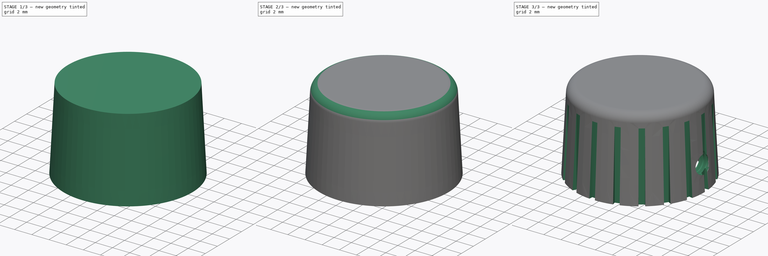
[diagram: build sequence overview — one tinted view per stage of 3, left to right]
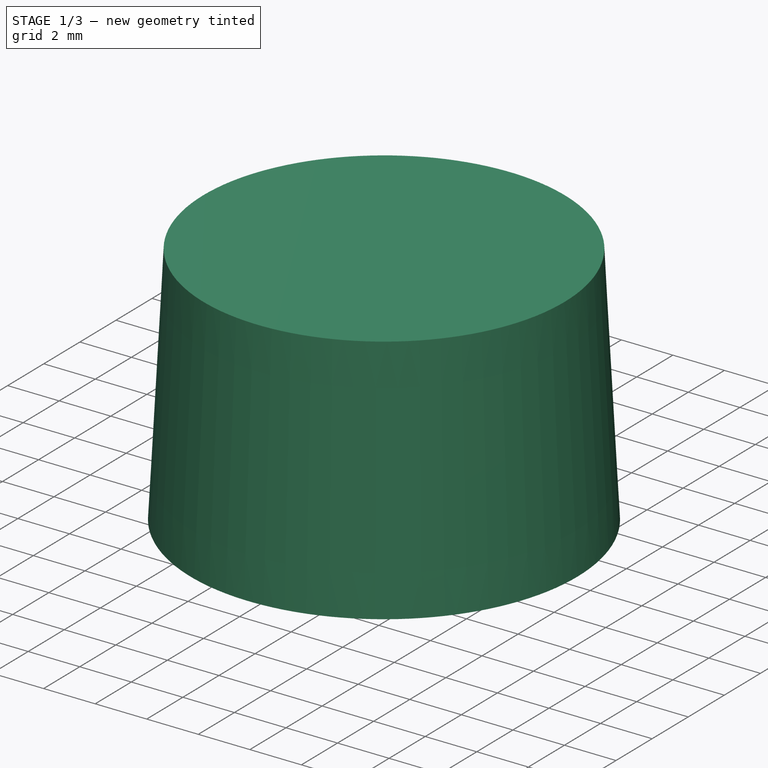
[diagram: stage 1 of 3 — iso view after this stage's code; geometry added in this stage tinted green]
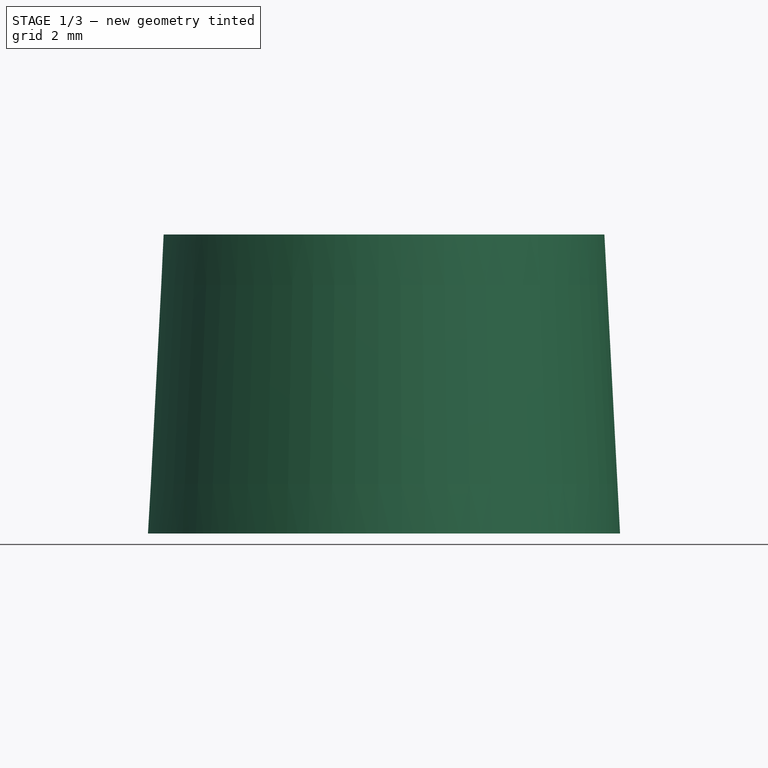
[diagram: stage 1 of 3 — front view after this stage's code; geometry added in this stage tinted green]
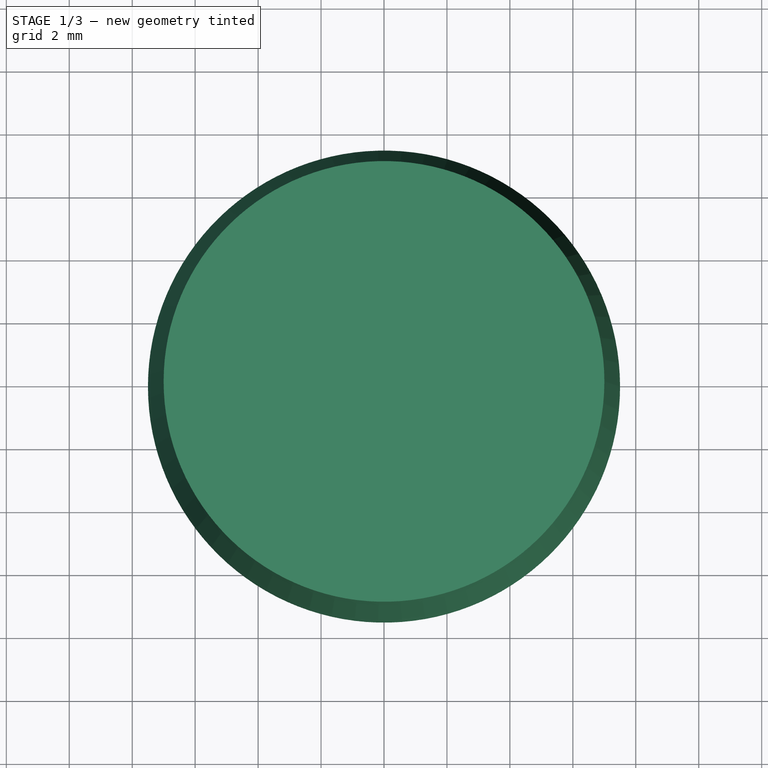
[diagram: stage 1 of 3 — top view after this stage's code; geometry added in this stage tinted green]
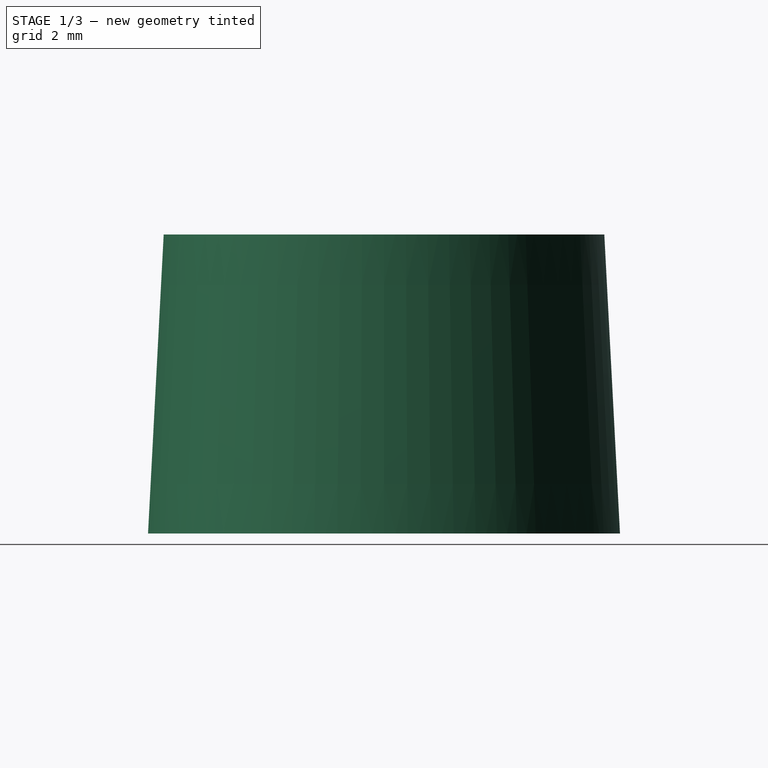
[diagram: stage 1 of 3 — right view after this stage's code; geometry added in this stage tinted green]
FCSTD DOCUMENT  (FreeCAD 1.0R39109 (Git))
Label: dial
License: All rights reserved
LicenseURL: https://en.wikipedia.org/wiki/All_rights_reserved
objects: Sketcher::SketchObject×3, PartDesign::Pocket×2, PartDesign::Pad×1, PartDesign::Fillet×1, PartDesign::Body×1, Part::Feature×1, Part::Cut×1, App::Part×1
note: 21 computed .brp shape members not serialized (recipe doc carries the construction recipe); baked Part::Feature solids carry a one-line shape summary decoded from their .brp

FEATURE [Sketcher::SketchObject] Sketch012
  ArcFitTolerance = 1e-06
  AttachmentSupport = -> [XY_Plane443]
  FullyConstrained = true
  MakeInternals = false
  MapMode = 5
  sketch-geometry (1):
    g0: Circle CenterX=0 CenterY=0 CenterZ=0 NormalX=0 NormalY=0 NormalZ=1 AngleXU=0 Radius=7.5
  constraints (2):
    c: Coincident(g0,g-1)
    c: Diameter(g0) = 15
FEATURE [PartDesign::Pad] Pad004
  Direction = (0,0,1)
  Length = 9.5
  Length2 = 10
  Profile = -> Sketch012
  ReferenceAxis = -> Sketch012 [N_Axis]
  Refine = true
  Suppressed = false
  TaperAngle = -3
  Type = 0
FEATURE [Sketcher::SketchObject] Sketch013
  ArcFitTolerance = 1e-06
  AttachmentSupport = -> [Pad004]
  FullyConstrained = false
  MakeInternals = false
  MapMode = 5
  Placement = pos=(0,0,0) rot=(1,0,0;3.14159rad)
  sketch-geometry (27):
    g0: ArcOfCircle CenterX=0 CenterY=0 CenterZ=0 NormalX=0 NormalY=0 NormalZ=1 AngleXU=0 Radius=6.2 StartAngle=1.66772 EndAngle=3.04467
    g1: ArcOfCircle CenterX=0 CenterY=0 CenterZ=0 NormalX=0 NormalY=0 NormalZ=1 AngleXU=0 Radius=4.475 StartAngle=1.70528 EndAngle=3.00711
    g2: LineSegment [constr] StartX=-9.21851 StartY=0.6 StartZ=0 EndX=-9.21851 EndY=-0.6 EndZ=0
    g3: LineSegment [constr] StartX=-9.21851 StartY=-0.6 StartZ=0 EndX=9.21851 EndY=-0.6 EndZ=0
    g4: LineSegment [constr] StartX=9.21851 StartY=-0.6 StartZ=0 EndX=9.21851 EndY=0.6 EndZ=0
    g5: LineSegment [constr] StartX=9.21851 StartY=0.6 StartZ=0 EndX=-9.21851 EndY=0.6 EndZ=0
    g6: LineSegment [constr] StartX=-0.6 StartY=9.73642 StartZ=0 EndX=-0.6 EndY=-9.73642 EndZ=0
    g7: LineSegment [constr] StartX=-0.6 StartY=-9.73642 StartZ=0 EndX=0.6 EndY=-9.73642 EndZ=0
    g8: LineSegment [constr] StartX=0.6 StartY=-9.73642 StartZ=0 EndX=0.6 EndY=9.73642 EndZ=0
    g9: LineSegment [constr] StartX=0.6 StartY=9.73642 StartZ=0 EndX=-0.6 EndY=9.73642 EndZ=0
    g10: LineSegment StartX=-0.6 StartY=6.1709 StartZ=0 EndX=-0.6 EndY=4.43459 EndZ=0
    g11: LineSegment StartX=0.6 StartY=6.1709 StartZ=0 EndX=0.6 EndY=4.43459 EndZ=0
    g12: LineSegment StartX=-0.6 StartY=-4.43459 StartZ=0 EndX=-0.6 EndY=-6.1709 EndZ=0
    g13: LineSegment StartX=0.6 StartY=-4.43459 StartZ=0 EndX=0.6 EndY=-6.1709 EndZ=0
    g14: LineSegment StartX=-4.43459 StartY=0.6 StartZ=0 EndX=-6.1709 EndY=0.6 EndZ=0
    g15: LineSegment StartX=-6.1709 StartY=-0.6 StartZ=0 EndX=-4.43459 EndY=-0.6 EndZ=0
    g16: LineSegment StartX=4.43459 StartY=0.6 StartZ=0 EndX=6.1709 EndY=0.6 EndZ=0
    g17: LineSegment StartX=6.1709 StartY=-0.6 StartZ=0 EndX=4.43459 EndY=-0.6 EndZ=0
    g18: ArcOfCircle CenterX=0 CenterY=0 CenterZ=0 NormalX=0 NormalY=0 NormalZ=1 AngleXU=0 Radius=4.475 StartAngle=3.27608 EndAngle=4.57791
    g19: ArcOfCircle CenterX=0 CenterY=0 CenterZ=0 NormalX=0 NormalY=0 NormalZ=1 AngleXU=0 Radius=4.475 StartAngle=0.134483 EndAngle=1.43631
    g20: ArcOfCircle CenterX=0 CenterY=0 CenterZ=0 NormalX=0 NormalY=0 NormalZ=1 AngleXU=0 Radius=6.2 StartAngle=0.0969259 EndAngle=1.47387
    g21: ArcOfCircle CenterX=0 CenterY=0 CenterZ=0 NormalX=0 NormalY=0 NormalZ=1 AngleXU=0 Radius=6.2 StartAngle=3.23852 EndAngle=4.61546
    g22: ArcOfCircle CenterX=0 CenterY=0 CenterZ=0 NormalX=0 NormalY=0 NormalZ=1 AngleXU=0 Radius=6.2 StartAngle=4.80931 EndAngle=6.18626
    g23: Circle [constr] CenterX=0 CenterY=0 CenterZ=0 NormalX=0 NormalY=0 NormalZ=1 AngleXU=0 Radius=6.2
    g24: ArcOfCircle CenterX=0 CenterY=0 CenterZ=0 NormalX=0 NormalY=0 NormalZ=1 AngleXU=0 Radius=4.475 StartAngle=4.84687 EndAngle=6.1487
    g25: Circle [constr] CenterX=0 CenterY=0 CenterZ=0 NormalX=0 NormalY=0 NormalZ=1 AngleXU=0 Radius=4.475
    g26: Circle CenterX=0 CenterY=0 CenterZ=0 NormalX=0 NormalY=0 NormalZ=1 AngleXU=0 Radius=3.05
  constraints (74):
    c: Coincident(g17,g22)
    c: Coincident(g16,g20)
    c: Coincident(g16,g19)
    c: Coincident(g17,g24)
    c: Coincident(g18,g24)
    c: Coincident(g13,g24)
    c: Coincident(g13,g22)
    c: Coincident(g12,g21)
    c: Coincident(g12,g18)
    c: Coincident(g15,g18)
    c: Coincident(g15,g21)
    c: Coincident(g0,g14)
    c: Coincident(g1,g14)
    c: Coincident(g1,g10)
    c: Coincident(g0,g10)
    c: Coincident(g11,g20)
    c: Coincident(g11,g19)
    c: Coincident(g25,g0)
    c: Diameter(g25) = 8.95
    c: Coincident(g0,g1)
    c: Coincident(g19,g20)
    c: Coincident(g0,g21)
    c: Coincident(g0,g23)
    c: Coincident(g0,g22)
    c: Coincident(g19,g18)
    c: Coincident(g0,g-1)
    c: Coincident(g18,g0)
    c: PointOnObject(g1,g25)
    c: PointOnObject(g1,g6)
    c: PointOnObject(g11,g25)
    c: PointOnObject(g11,g8)
    c: PointOnObject(g17,g25)
    c: PointOnObject(g17,g3)
    c: PointOnObject(g16,g5)
    c: PointOnObject(g16,g23)
    c: PointOnObject(g16,g5)
    c: PointOnObject(g17,g3)
    c: PointOnObject(g17,g23)
    c: PointOnObject(g13,g8)
    c: PointOnObject(g12,g23)
    c: PointOnObject(g12,g25)
    c: PointOnObject(g12,g6)
    c: PointOnObject(g15,g3)
    c: PointOnObject(g15,g3)
    c: PointOnObject(g0,g23)
    c: PointOnObject(g0,g5)
    c: PointOnObject(g1,g5)
    c: PointOnObject(g0,g6)
    c: PointOnObject(g11,g8)
    c: Vertical(g6)
    c: Vertical(g8)
    c: Horizontal(g5)
    c: Horizontal(g3)
    c: Coincident(g2,g5)
    c: Coincident(g2,g3)
    c: Coincident(g4,g5)
    c: Coincident(g3,g4)
    c: Coincident(g6,g9)
    c: Coincident(g8,g9)
    c: Coincident(g6,g7)
    c: Coincident(g7,g8)
    c: PointOnObject(g12,g6)
    c: PointOnObject(g13,g8)
    c: Equal(g9,g4)
    c: Symmetric(g2,g3,g0)
    c: Symmetric(g6,g7,g0)
    c: Distance(g4,g4) = 1.2
    c: Radius(g0) = 6.2
    c: Coincident(g26,g0)
    c: Diameter(g26) = 6.1
    c: Vertical(g2)
    c: Vertical(g4)
    c: Horizontal(g9)
    c: Horizontal(g7)
FEATURE [PartDesign::Pocket] Pocket002
  BaseFeature = -> Pad004
  Direction = (0,0,1)
  Length = 8.8
  Length2 = 5
  Profile = -> Sketch013
  ReferenceAxis = -> Sketch013 [N_Axis]
  Refine = true
  Suppressed = false
  TaperAngle = -0.7
  Type = 0
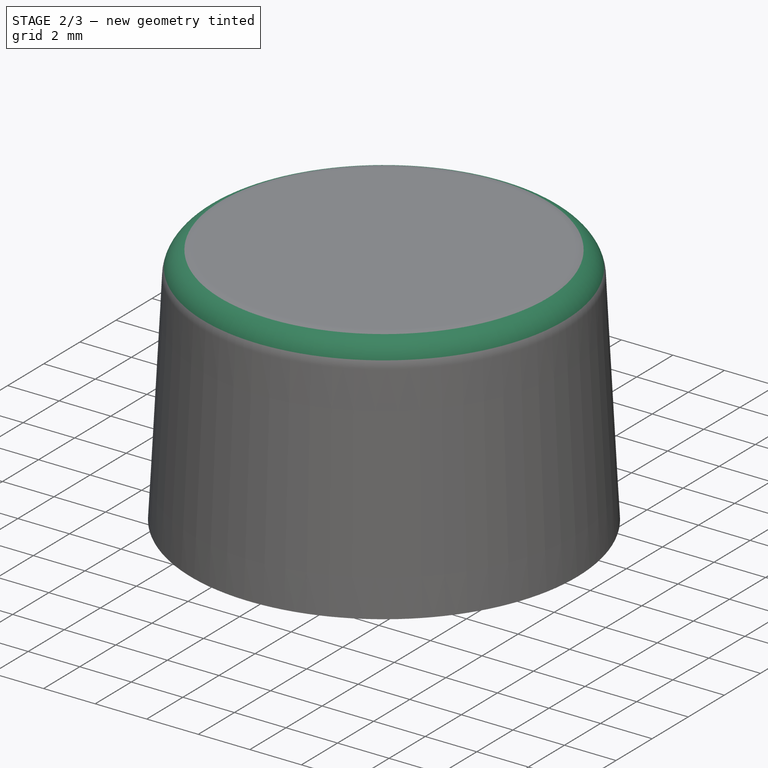
[diagram: stage 2 of 3 — iso view after this stage's code; geometry added in this stage tinted green]
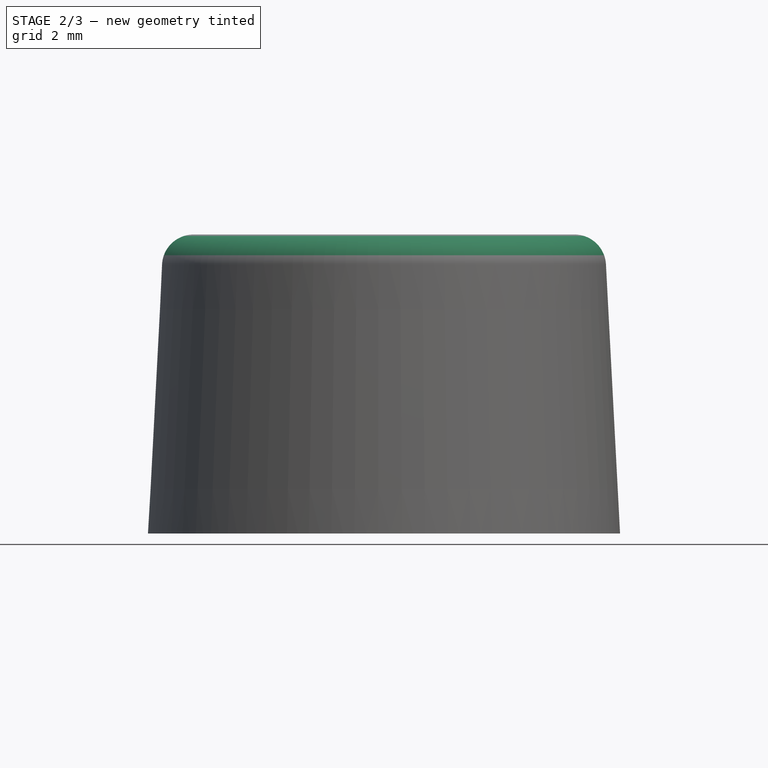
[diagram: stage 2 of 3 — front view after this stage's code; geometry added in this stage tinted green]
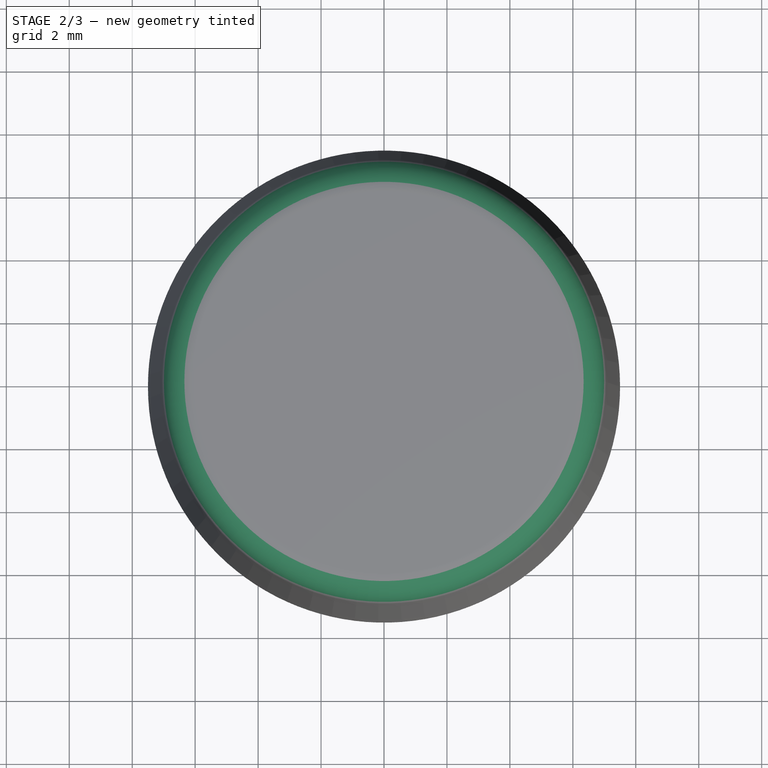
[diagram: stage 2 of 3 — top view after this stage's code; geometry added in this stage tinted green]
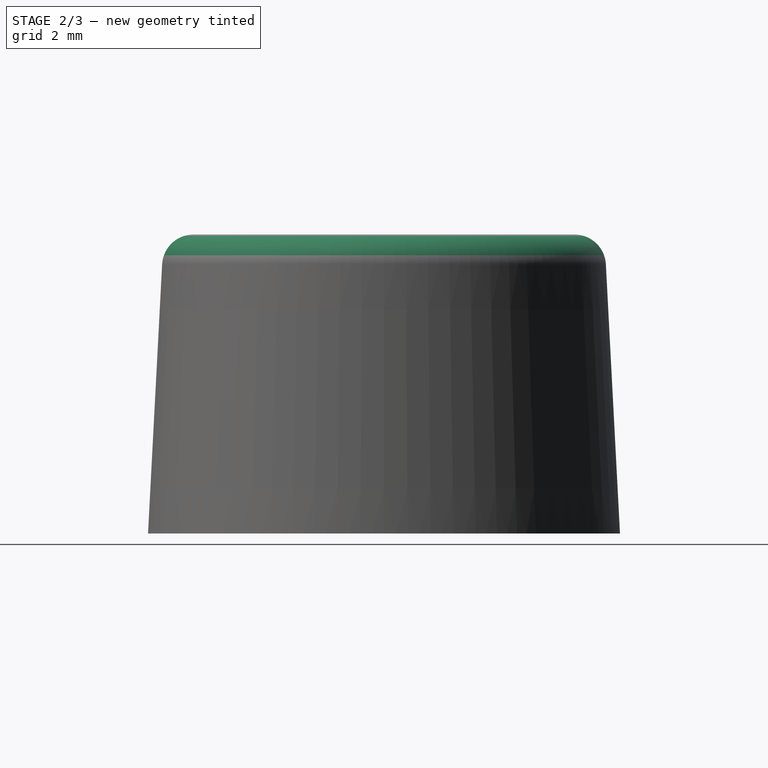
[diagram: stage 2 of 3 — right view after this stage's code; geometry added in this stage tinted green]
FEATURE [PartDesign::Fillet] Fillet002
  Base = -> Pocket002 [Edge3]
  BaseFeature = -> Pocket002
  Radius = 1
  Refine = true
  SupportTransform = false
  Suppressed = false
  UseAllEdges = false
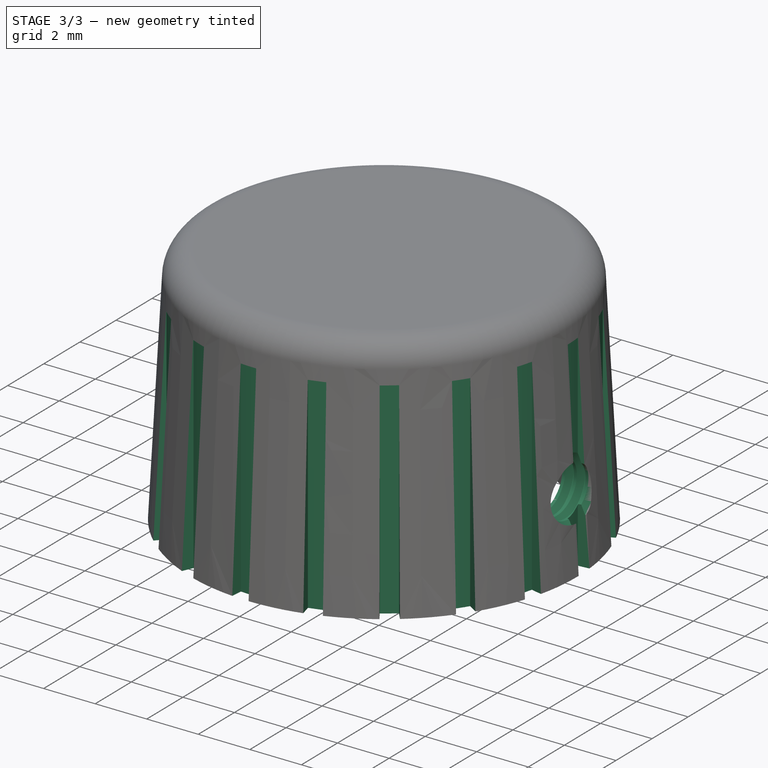
[diagram: stage 3 of 3 — iso view after this stage's code; geometry added in this stage tinted green]
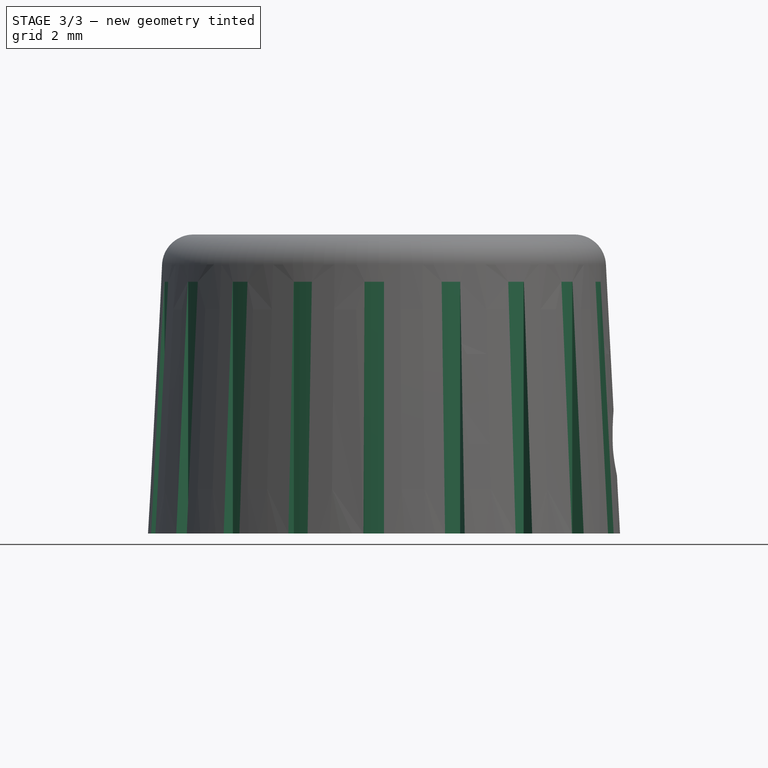
[diagram: stage 3 of 3 — front view after this stage's code; geometry added in this stage tinted green]
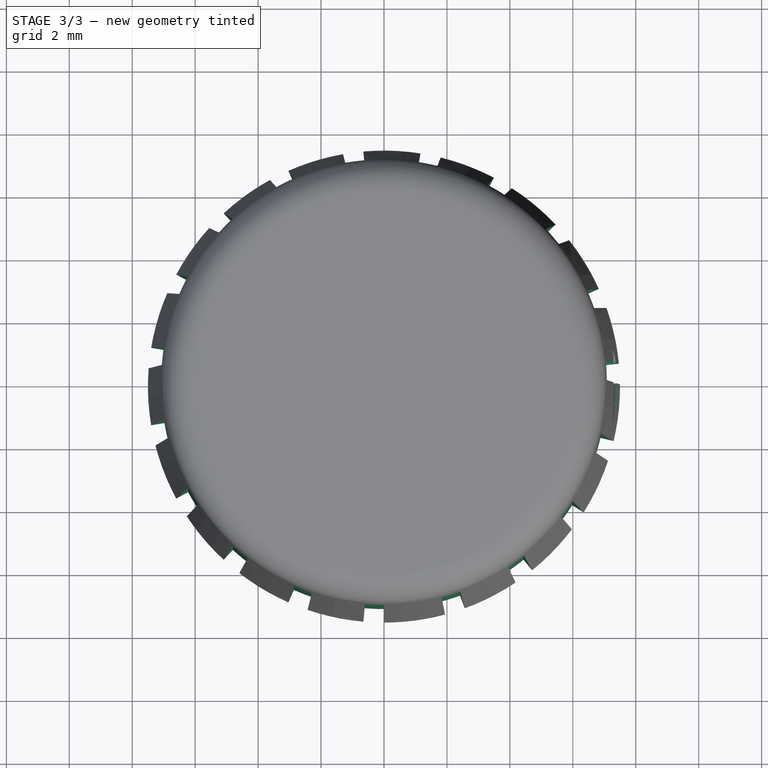
[diagram: stage 3 of 3 — top view after this stage's code; geometry added in this stage tinted green]
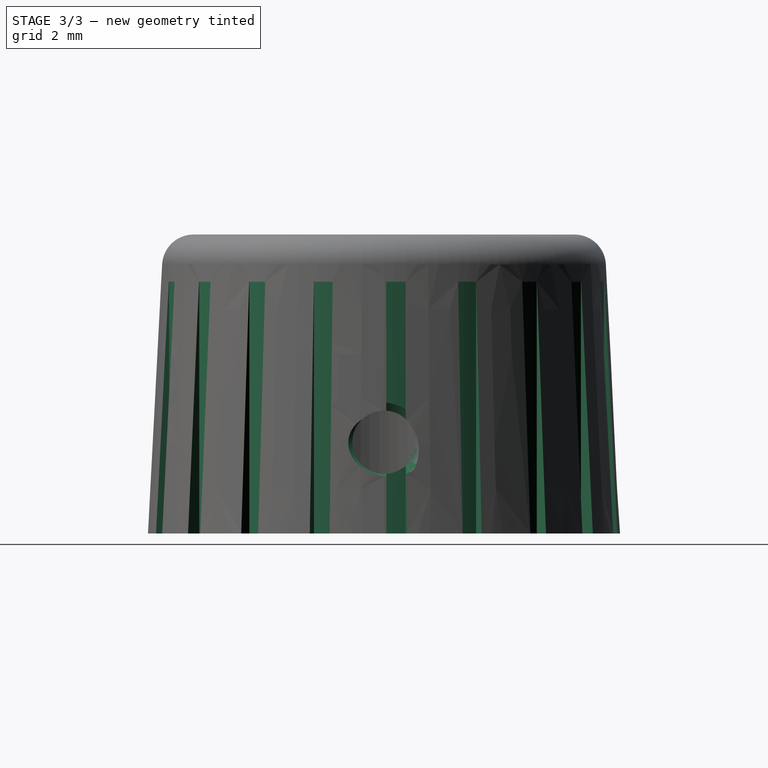
[diagram: stage 3 of 3 — right view after this stage's code; geometry added in this stage tinted green]
FEATURE [Sketcher::SketchObject] Sketch014
  ArcFitTolerance = 1e-06
  FullyConstrained = false
  MakeInternals = false
  MapMode = 5
  Placement = pos=(0,0,0) rot=(1,0,0;3.14159rad)
  sketch-geometry (76):
    g0: ArcOfCircle CenterX=0 CenterY=0 CenterZ=0 NormalX=0 NormalY=0 NormalZ=1 AngleXU=0 Radius=8 StartAngle=1.5708 EndAngle=1.65806
    g1: ArcOfCircle CenterX=0 CenterY=0 CenterZ=0 NormalX=0 NormalY=0 NormalZ=1 AngleXU=0 Radius=7.07 StartAngle=1.5708 EndAngle=1.65806
    g2: LineSegment StartX=-0.697242 StartY=7.96956 StartZ=0 EndX=-0.616188 EndY=7.0431 EndZ=0
    g3: LineSegment StartX=5e-16 StartY=8 StartZ=0 EndX=4e-16 EndY=7.07 EndZ=0
    g4: ArcOfCircle CenterX=0 CenterY=0 CenterZ=0 NormalX=0 NormalY=0 NormalZ=1 AngleXU=0 Radius=8 StartAngle=1.90047 EndAngle=1.98774
    g5: ArcOfCircle CenterX=0 CenterY=0 CenterZ=0 NormalX=0 NormalY=0 NormalZ=1 AngleXU=0 Radius=7.07 StartAngle=1.90047 EndAngle=1.98774
    g6: LineSegment StartX=-3.23971 StartY=7.31466 StartZ=0 EndX=-2.86309 EndY=6.46433 EndZ=0
    g7: LineSegment StartX=-2.58987 StartY=7.56918 StartZ=0 EndX=-2.2888 EndY=6.68927 EndZ=0
    g8: ArcOfCircle CenterX=0 CenterY=0 CenterZ=0 NormalX=0 NormalY=0 NormalZ=1 AngleXU=0 Radius=8 StartAngle=2.23014 EndAngle=2.31741
    g9: ArcOfCircle CenterX=0 CenterY=0 CenterZ=0 NormalX=0 NormalY=0 NormalZ=1 AngleXU=0 Radius=7.07 StartAngle=2.23014 EndAngle=2.31741
    g10: LineSegment StartX=-5.43325 StartY=5.87195 StartZ=0 EndX=-4.80163 EndY=5.18933 EndZ=0
    g11: LineSegment StartX=-4.9008 StartY=6.32314 StartZ=0 EndX=-4.33109 EndY=5.58808 EndZ=0
    g12: ArcOfCircle CenterX=0 CenterY=0 CenterZ=0 NormalX=0 NormalY=0 NormalZ=1 AngleXU=0 Radius=8 StartAngle=2.55982 EndAngle=2.64708
    g13: ArcOfCircle CenterX=0 CenterY=0 CenterZ=0 NormalX=0 NormalY=0 NormalZ=1 AngleXU=0 Radius=7.07 StartAngle=2.55982 EndAngle=2.64708
    g14: LineSegment StartX=-7.04161 StartY=3.79681 StartZ=0 EndX=-6.22302 EndY=3.35543 EndZ=0
    g15: LineSegment StartX=-6.6839 StartY=4.39607 StartZ=0 EndX=-5.9069 EndY=3.88503 EndZ=0
    g16: ArcOfCircle CenterX=0 CenterY=0 CenterZ=0 NormalX=0 NormalY=0 NormalZ=1 AngleXU=0 Radius=8 StartAngle=2.88949 EndAngle=2.97676
    g17: ArcOfCircle CenterX=0 CenterY=0 CenterZ=0 NormalX=0 NormalY=0 NormalZ=1 AngleXU=0 Radius=7.07 StartAngle=2.88949 EndAngle=2.97676
    g18: LineSegment StartX=-7.89156 StartY=1.31273 StartZ=0 EndX=-6.97417 EndY=1.16012 EndZ=0
    g19: LineSegment StartX=-7.74712 StartY=1.99553 StartZ=0 EndX=-6.84652 EndY=1.76355 EndZ=0
    g20: ArcOfCircle CenterX=0 CenterY=0 CenterZ=0 NormalX=0 NormalY=0 NormalZ=1 AngleXU=0 Radius=8 StartAngle=3.21916 EndAngle=3.30643
    g21: ArcOfCircle CenterX=0 CenterY=0 CenterZ=0 NormalX=0 NormalY=0 NormalZ=1 AngleXU=0 Radius=7.07 StartAngle=3.21916 EndAngle=3.30643
    g22: LineSegment StartX=-7.89156 StartY=-1.31273 StartZ=0 EndX=-6.97417 EndY=-1.16012 EndZ=0
    g23: LineSegment StartX=-7.97594 StartY=-0.619941 StartZ=0 EndX=-7.04874 EndY=-0.547871 EndZ=0
    g24: ArcOfCircle CenterX=0 CenterY=0 CenterZ=0 NormalX=0 NormalY=0 NormalZ=1 AngleXU=0 Radius=8 StartAngle=3.54884 EndAngle=3.6361
    g25: ArcOfCircle CenterX=0 CenterY=0 CenterZ=0 NormalX=0 NormalY=0 NormalZ=1 AngleXU=0 Radius=7.07 StartAngle=3.54884 EndAngle=3.6361
    g26: LineSegment StartX=-7.04161 StartY=-3.7968 StartZ=0 EndX=-6.22303 EndY=-3.35542 EndZ=0
    g27: LineSegment StartX=-7.34573 StartY=-3.16864 StartZ=0 EndX=-6.49179 EndY=-2.80028 EndZ=0
    g28: ArcOfCircle CenterX=0 CenterY=0 CenterZ=0 NormalX=0 NormalY=0 NormalZ=1 AngleXU=0 Radius=8 StartAngle=3.87851 EndAngle=3.96578
    g29: ArcOfCircle CenterX=0 CenterY=0 CenterZ=0 NormalX=0 NormalY=0 NormalZ=1 AngleXU=0 Radius=7.07 StartAngle=3.87851 EndAngle=3.96578
    g30: LineSegment StartX=-5.43326 StartY=-5.87194 StartZ=0 EndX=-4.80164 EndY=-5.18933 EndZ=0
    g31: LineSegment StartX=-5.92435 StartY=-5.37606 StartZ=0 EndX=-5.23565 EndY=-4.75109 EndZ=0
    g32: ArcOfCircle CenterX=0 CenterY=0 CenterZ=0 NormalX=0 NormalY=0 NormalZ=1 AngleXU=0 Radius=8 StartAngle=4.20818 EndAngle=4.29545
    g33: ArcOfCircle CenterX=0 CenterY=0 CenterZ=0 NormalX=0 NormalY=0 NormalZ=1 AngleXU=0 Radius=7.07 StartAngle=4.20818 EndAngle=4.29545
    g34: LineSegment StartX=-3.23972 StartY=-7.31466 StartZ=0 EndX=-2.8631 EndY=-6.46433 EndZ=0
    g35: LineSegment StartX=-3.8649 StartY=-7.00447 StartZ=0 EndX=-3.4156 EndY=-6.1902 EndZ=0
    g36: ArcOfCircle CenterX=0 CenterY=0 CenterZ=0 NormalX=0 NormalY=0 NormalZ=1 AngleXU=0 Radius=8 StartAngle=4.53786 EndAngle=4.62512
    g37: ArcOfCircle CenterX=0 CenterY=0 CenterZ=0 NormalX=0 NormalY=0 NormalZ=1 AngleXU=0 Radius=7.07 StartAngle=4.53786 EndAngle=4.62512
    g38: LineSegment StartX=-0.69725 StartY=-7.96956 StartZ=0 EndX=-0.616194 EndY=-7.0431 EndZ=0
    g39: LineSegment StartX=-1.38919 StartY=-7.87846 StartZ=0 EndX=-1.22769 EndY=-6.96259 EndZ=0
    g40: ArcOfCircle CenterX=0 CenterY=2.20816e-07 CenterZ=0 NormalX=0 NormalY=0 NormalZ=1 AngleXU=0 Radius=8 StartAngle=4.86753 EndAngle=4.9548
    g41: ArcOfCircle CenterX=0 CenterY=2.20816e-07 CenterZ=0 NormalX=0 NormalY=0 NormalZ=1 AngleXU=0 Radius=7.07 StartAngle=4.86753 EndAngle=4.9548
    g42: LineSegment StartX=1.92031 StartY=-7.7661 StartZ=0 EndX=1.69708 EndY=-6.8633 EndZ=0
    g43: LineSegment StartX=1.23615 StartY=-7.90392 StartZ=0 EndX=1.09245 EndY=-6.98509 EndZ=0
    g44: ArcOfCircle CenterX=0 CenterY=0 CenterZ=0 NormalX=0 NormalY=0 NormalZ=1 AngleXU=0 Radius=8 StartAngle=5.1972 EndAngle=5.28447
    g45: ArcOfCircle CenterX=0 CenterY=0 CenterZ=0 NormalX=0 NormalY=0 NormalZ=1 AngleXU=0 Radius=7.07 StartAngle=5.1972 EndAngle=5.28447
    g46: LineSegment StartX=4.33106 StartY=-6.72621 StartZ=0 EndX=3.82757 EndY=-5.94429 EndZ=0
    g47: LineSegment StartX=3.72835 StartY=-7.07809 StartZ=0 EndX=3.29493 EndY=-6.25526 EndZ=0
    g48: ArcOfCircle CenterX=0 CenterY=0 CenterZ=0 NormalX=0 NormalY=0 NormalZ=1 AngleXU=0 Radius=8 StartAngle=5.52688 EndAngle=5.61414
    g49: ArcOfCircle CenterX=0 CenterY=0 CenterZ=0 NormalX=0 NormalY=0 NormalZ=1 AngleXU=0 Radius=7.07 StartAngle=5.52688 EndAngle=5.61414
    g50: LineSegment StartX=6.27532 StartY=-4.96189 StartZ=0 EndX=5.54582 EndY=-4.38507 EndZ=0
    g51: LineSegment StartX=5.81899 StartY=-5.48993 StartZ=0 EndX=5.14253 EndY=-4.85173 EndZ=0
    g52: ArcOfCircle CenterX=0 CenterY=0 CenterZ=0 NormalX=0 NormalY=0 NormalZ=1 AngleXU=0 Radius=8 StartAngle=5.85655 EndAngle=5.94381
    g53: ArcOfCircle CenterX=0 CenterY=0 CenterZ=0 NormalX=0 NormalY=0 NormalZ=1 AngleXU=0 Radius=7.07 StartAngle=5.85655 EndAngle=5.94382
    g54: LineSegment StartX=7.54372 StartY=-2.66315 StartZ=0 EndX=6.66676 EndY=-2.35356 EndZ=0
    g55: LineSegment StartX=7.2829 StartY=-3.31049 StartZ=0 EndX=6.43627 EndY=-2.92564 EndZ=0
    g56: ArcOfCircle CenterX=0 CenterY=0 CenterZ=0 NormalX=0 NormalY=0 NormalZ=1 AngleXU=0 Radius=8 StartAngle=6.18622 EndAngle=6.27349
    g57: ArcOfCircle CenterX=0 CenterY=0 CenterZ=0 NormalX=0 NormalY=0 NormalZ=1 AngleXU=0 Radius=7.07 StartAngle=6.18622 EndAngle=6.27349
    g58: LineSegment StartX=7.99962 StartY=-0.0775692 StartZ=0 EndX=7.06967 EndY=-0.068555 EndZ=0
    g59: LineSegment StartX=7.96242 StartY=-0.774484 StartZ=0 EndX=7.03679 EndY=-0.68445 EndZ=0
    g60: ArcOfCircle CenterX=0 CenterY=0 CenterZ=0 NormalX=0 NormalY=0 NormalZ=1 AngleXU=0 Radius=8 StartAngle=0.232711 EndAngle=0.319977
    g61: ArcOfCircle CenterX=0 CenterY=0 CenterZ=0 NormalX=0 NormalY=0 NormalZ=1 AngleXU=0 Radius=7.07 StartAngle=0.232711 EndAngle=0.319977
    g62: LineSegment StartX=7.59394 StartY=2.51635 StartZ=0 EndX=6.71115 EndY=2.22383 EndZ=0
    g63: LineSegment StartX=7.78436 StartY=1.84493 StartZ=0 EndX=6.87943 EndY=1.63045 EndZ=0
    g64: ArcOfCircle CenterX=-6.94897e-07 CenterY=0 CenterZ=0 NormalX=0 NormalY=0 NormalZ=1 AngleXU=0 Radius=8 StartAngle=0.562384 EndAngle=0.64965
    g65: ArcOfCircle CenterX=-6.94897e-07 CenterY=0 CenterZ=0 NormalX=0 NormalY=0 NormalZ=1 AngleXU=0 Radius=7.07 StartAngle=0.562384 EndAngle=0.64965
    g66: LineSegment StartX=6.37036 StartY=4.83926 StartZ=0 EndX=5.62981 EndY=4.2767 EndZ=0
    g67: LineSegment StartX=6.76789 StartY=4.26564 StartZ=0 EndX=5.98112 EndY=3.76975 EndZ=0
    g68: ArcOfCircle CenterX=0 CenterY=0 CenterZ=0 NormalX=0 NormalY=0 NormalZ=1 AngleXU=0 Radius=8 StartAngle=0.892057 EndAngle=0.979323
    g69: ArcOfCircle CenterX=0 CenterY=0 CenterZ=0 NormalX=0 NormalY=0 NormalZ=1 AngleXU=0 Radius=7.07 StartAngle=0.892057 EndAngle=0.979323
    g70: LineSegment StartX=4.46068 StartY=6.64096 StartZ=0 EndX=3.94212 EndY=5.86895 EndZ=0
    g71: LineSegment StartX=5.0225 StartY=6.22692 StartZ=0 EndX=4.43863 EndY=5.50304 EndZ=0
    g72: ArcOfCircle CenterX=0 CenterY=-9e-16 CenterZ=0 NormalX=0 NormalY=0 NormalZ=1 AngleXU=0 Radius=8 StartAngle=1.22173 EndAngle=1.309
    g73: ArcOfCircle CenterX=0 CenterY=-9e-16 CenterZ=0 NormalX=0 NormalY=0 NormalZ=1 AngleXU=0 Radius=7.07 StartAngle=1.22173 EndAngle=1.309
    g74: LineSegment StartX=2.07056 StartY=7.72741 StartZ=0 EndX=1.82985 EndY=6.82909 EndZ=0
    g75: LineSegment StartX=2.73616 StartY=7.51754 StartZ=0 EndX=2.41808 EndY=6.64363 EndZ=0
  constraints (120):
    c: Angle(g0) = 0.087266
    c: Coincident(g0,g-1)
    c: PointOnObject(g0,g-2)
    c: Distance(g0,g0) = 8
    c: Angle(g1) = 0.087266
    c: Coincident(g1,g0)
    c: PointOnObject(g1,g-2)
    c: Coincident(g2,g0)
    c: Coincident(g2,g1)
    c: Coincident(g3,g1)
    c: Coincident(g0,g3)
    c: DistanceY(g3,g3) = 0.93
    c: Distance(g4,g4) = 8
    c: Distance(g8,g8) = 8
    c: Distance(g12,g12) = 8
    c: Distance(g16,g16) = 8
    c: Distance(g20,g20) = 8
    c: Distance(g24,g24) = 8
    c: Distance(g28,g28) = 8
    c: Distance(g32,g32) = 8
    c: Distance(g36,g36) = 8
    c: Distance(g40,g40) = 8
    c: Distance(g44,g44) = 8
    c: Distance(g48,g48) = 8
    c: Distance(g52,g52) = 8
    c: Distance(g56,g56) = 8
    c: Distance(g60,g60) = 8
    c: Distance(g64,g64) = 8
    c: Distance(g68,g68) = 8
    c: Distance(g72,g72) = 8
    c: Coincident(g5,g4)
    c: Coincident(g9,g8)
    c: Coincident(g13,g12)
    c: Coincident(g17,g16)
    c: Coincident(g21,g20)
    c: Coincident(g25,g24)
    c: Coincident(g29,g28)
    c: Coincident(g33,g32)
    c: Coincident(g37,g36)
    c: Coincident(g41,g40)
    c: Coincident(g45,g44)
    c: Coincident(g49,g48)
    c: Coincident(g53,g52)
    c: Coincident(g57,g56)
    c: Coincident(g61,g60)
    c: Coincident(g65,g64)
    c: Coincident(g69,g68)
    c: Coincident(g73,g72)
    c: Coincident(g6,g4)
    c: Coincident(g10,g8)
    c: Coincident(g14,g12)
    c: Coincident(g18,g16)
    c: Coincident(g22,g20)
    c: Coincident(g26,g24)
    c: Coincident(g30,g28)
    c: Coincident(g34,g32)
    c: Coincident(g38,g36)
    c: Coincident(g42,g40)
    c: Coincident(g46,g44)
    c: Coincident(g50,g48)
    c: Coincident(g54,g52)
    c: Coincident(g58,g56)
    c: Coincident(g62,g60)
    c: Coincident(g66,g64)
    c: Coincident(g70,g68)
    c: Coincident(g74,g72)
    c: Coincident(g6,g5)
    c: Coincident(g10,g9)
    c: Coincident(g14,g13)
    c: Coincident(g18,g17)
    c: Coincident(g22,g21)
    c: Coincident(g26,g25)
    c: Coincident(g30,g29)
    c: Coincident(g34,g33)
    c: Coincident(g38,g37)
    c: Coincident(g42,g41)
    c: Coincident(g46,g45)
    c: Coincident(g50,g49)
    c: Coincident(g54,g53)
    c: Coincident(g58,g57)
    c: Coincident(g62,g61)
    c: Coincident(g66,g65)
    c: Coincident(g70,g69)
    c: Coincident(g74,g73)
    c: Coincident(g7,g5)
    c: Coincident(g11,g9)
    c: Coincident(g15,g13)
    c: Coincident(g19,g17)
    c: Coincident(g23,g21)
    c: Coincident(g27,g25)
    c: Coincident(g31,g29)
    c: Coincident(g35,g33)
    c: Coincident(g39,g37)
    c: Coincident(g43,g41)
    c: Coincident(g47,g45)
    c: Coincident(g51,g49)
    c: Coincident(g55,g53)
    c: Coincident(g59,g57)
    c: Coincident(g63,g61)
    c: Coincident(g67,g65)
    c: Coincident(g71,g69)
    c: Coincident(g75,g73)
    c: Coincident(g4,g7)
    c: Coincident(g8,g11)
    c: Coincident(g12,g15)
    c: Coincident(g16,g19)
    c: Coincident(g20,g23)
    c: Coincident(g24,g27)
    c: Coincident(g28,g31)
    c: Coincident(g32,g35)
    c: Coincident(g36,g39)
    c: Coincident(g40,g43)
    c: Coincident(g44,g47)
    c: Coincident(g48,g51)
    c: Coincident(g52,g55)
    c: Coincident(g56,g59)
    c: Coincident(g60,g63)
    c: Coincident(g64,g67)
    c: Coincident(g68,g71)
    c: Coincident(g72,g75)
FEATURE [PartDesign::Pocket] Pocket003
  BaseFeature = -> Fillet002
  Direction = (0,0,1)
  Length = 8
  Length2 = 5
  Profile = -> Sketch014
  ReferenceAxis = -> Sketch014 [N_Axis]
  Refine = true
  Suppressed = false
  Type = 0
FEATURE [PartDesign::Body] Body002  label="Dial_new"
  AllowCompound = false
  Group = -> [Sketch012,Pad004,Sketch013,Pocket002,Fillet002,Sketch014,Pocket003]
  Origin = -> Origin443
  Tip = -> Pocket003
FEATURE [Part::Feature] Part__Feature003  label="ScrewTap-M2.5x16_"
  Placement = pos=(17.6,0,2.9) rot=(0,1,0;1.5708rad)
  shape: bbox 17.1 x 3.923 x 3.633 mm, 150 faces (baked)
FEATURE [Part::Cut] Cut
  Base = -> Body002
  Refine = true
  Tool = -> Part__Feature003
FEATURE [App::Part] Part
  Group = -> [Part__Feature003,Body002,Cut]
  Origin = -> Origin
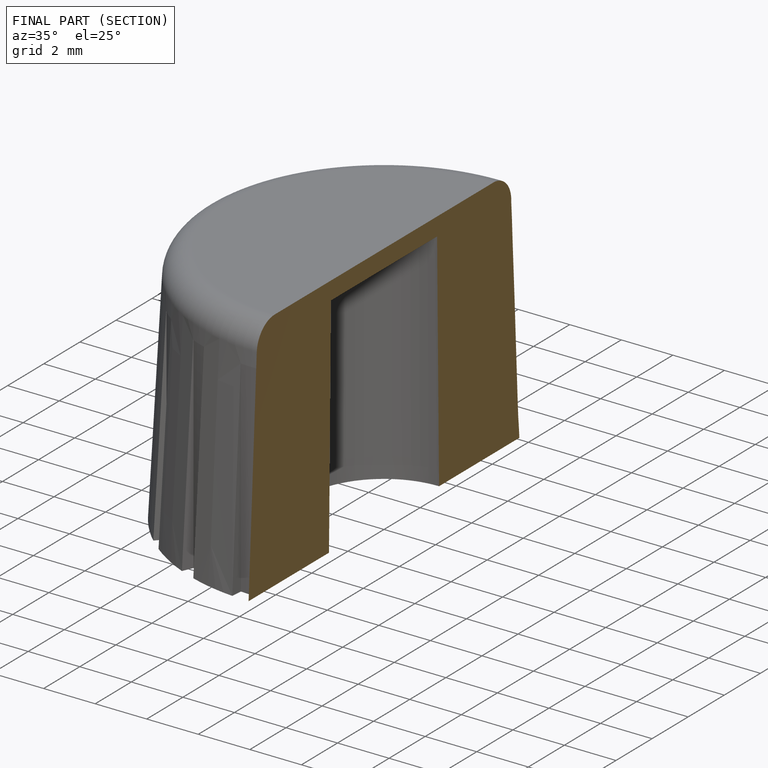
[diagram: finished part — half-section view (interior)]
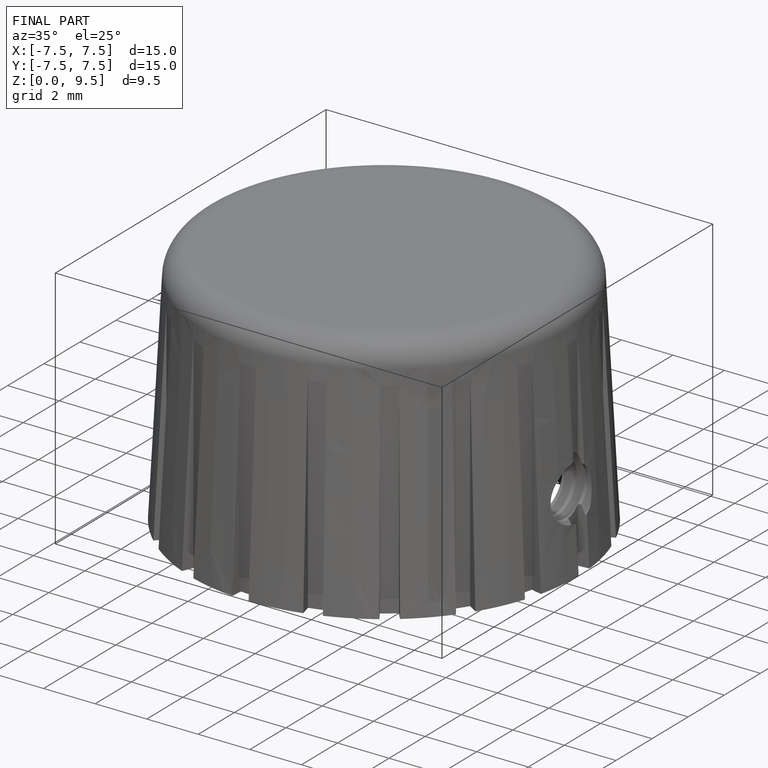
[diagram: finished part — iso view with bounding-box wireframe]
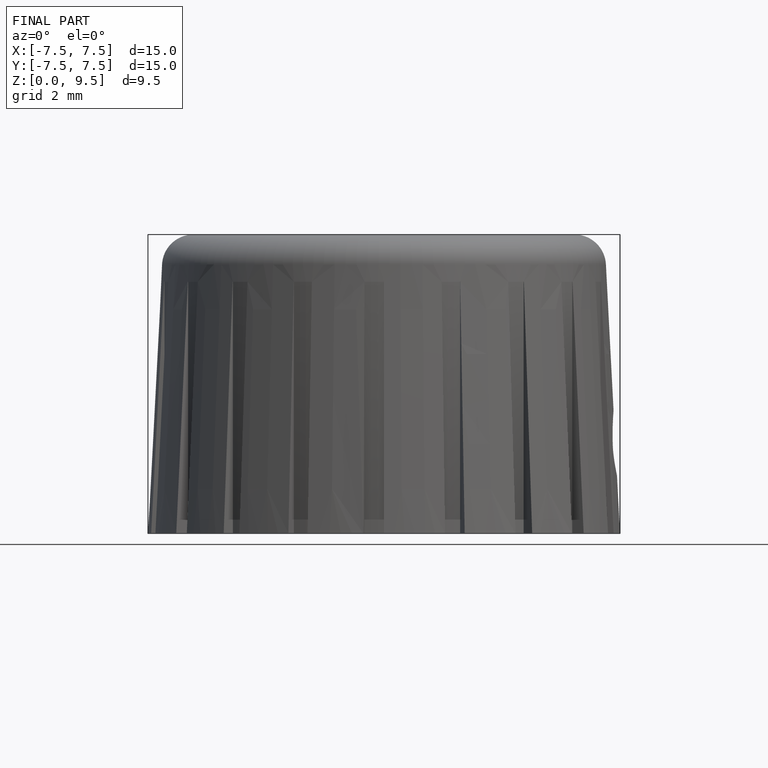
[diagram: finished part — front view with bounding-box wireframe]
